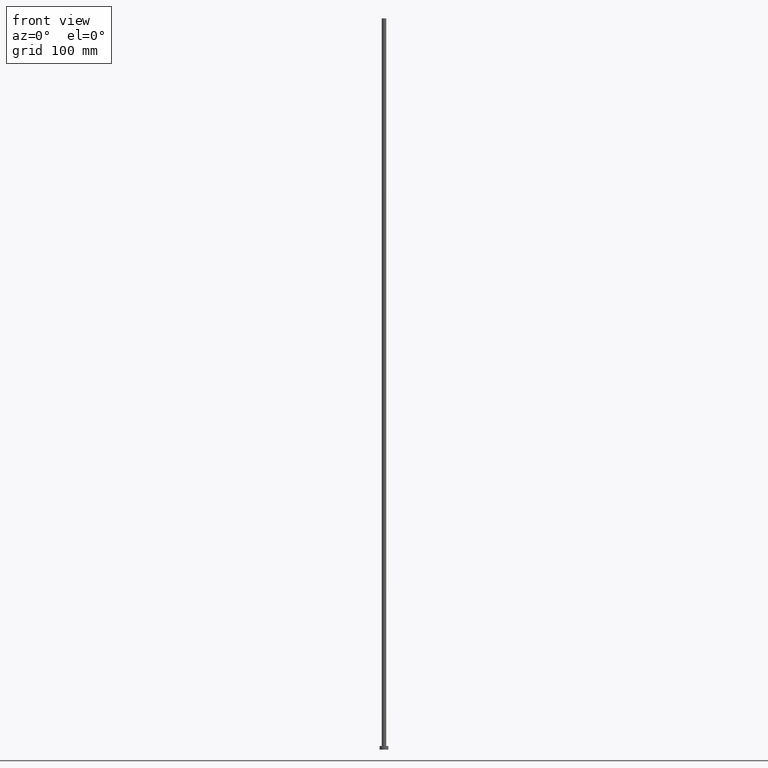
[diagram: clean part render]
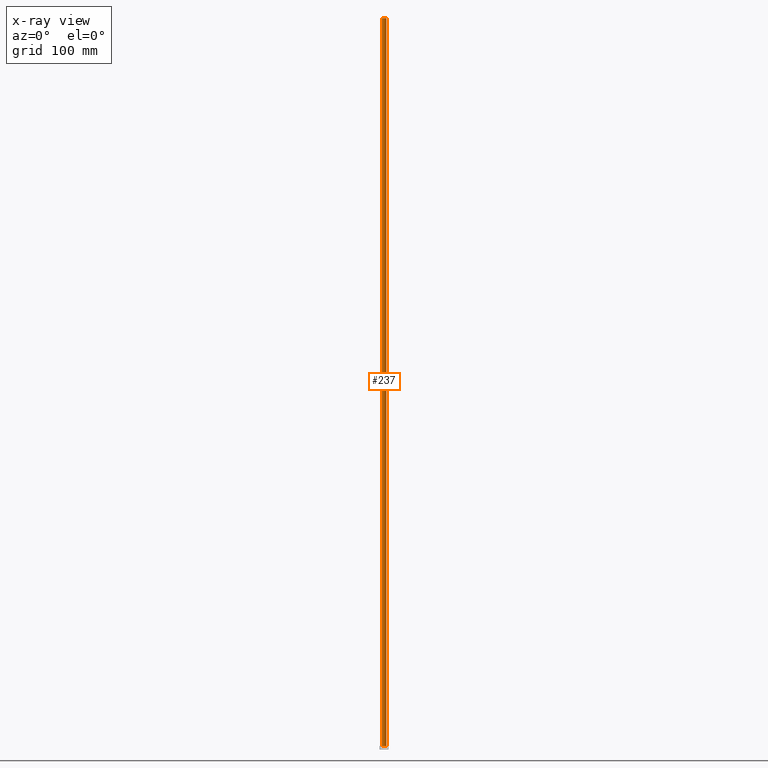
[diagram: x-ray — body ghosted, one internal face saturated and labeled with its STEP entity id]
A machine part, front view, then the same camera in x-ray: the body is ghosted and one INTERNAL B-rep face — a face not visible from any outside direction — is saturated and labeled: STEP entity #237.
In plain terms, the highlighted cylindrical surface (edge-blend (fillet) strip) has radius 3.1 mm, axis along (-0, -0, -1).
Its self-contained STEP definition (entity closure, byte-faithful):
#6 = CARTESIAN_POINT ( 'NONE',  ( 3.100000000000000089, 3.796405077356793932E-16, 1000.000000000000000 ) ) ;
#9 = CYLINDRICAL_SURFACE ( 'NONE', #106, 3.100000000000000089 ) ;
#10 = VERTEX_POINT ( 'NONE', #115 ) ;
#23 = DIRECTION ( 'NONE',  ( 0.000000000000000000, 0.000000000000000000, 1.000000000000000000 ) ) ;
#27 = CARTESIAN_POINT ( 'NONE',  ( -3.100000000000000089, 0.000000000000000000, 1000.000000000000000 ) ) ;
#30 = ORIENTED_EDGE ( 'NONE', *, *, #68, .T. ) ;
#51 = VECTOR ( 'NONE', #181, 1000.000000000000000 ) ;
#54 = CARTESIAN_POINT ( 'NONE',  ( 0.000000000000000000, 0.000000000000000000, 1000.000000000000000 ) ) ;
#60 = ORIENTED_EDGE ( 'NONE', *, *, #87, .F. ) ;
#68 = EDGE_CURVE ( 'NONE', #167, #10, #233, .T. ) ;
#70 = CIRCLE ( 'NONE', #147, 3.100000000000000089 ) ;
#76 = VECTOR ( 'NONE', #239, 1000.000000000000000 ) ;
#84 = VERTEX_POINT ( 'NONE', #27 ) ;
#86 = EDGE_LOOP ( 'NONE', ( #127, #30, #203, #60 ) ) ;
#87 = EDGE_CURVE ( 'NONE', #84, #208, #154, .T. ) ;
#89 = DIRECTION ( 'NONE',  ( -0.000000000000000000, -0.000000000000000000, -1.000000000000000000 ) ) ;
#91 = DIRECTION ( 'NONE',  ( 1.000000000000000000, 0.000000000000000000, 0.000000000000000000 ) ) ;
#104 = DIRECTION ( 'NONE',  ( 1.000000000000000000, 0.000000000000000000, 0.000000000000000000 ) ) ;
#106 = AXIS2_PLACEMENT_3D ( 'NONE', #225, #89, #130 ) ;
#115 = CARTESIAN_POINT ( 'NONE',  ( 3.100000000000000089, 3.796405077356793932E-16, 5.000000000000000000 ) ) ;
#118 = EDGE_CURVE ( 'NONE', #10, #208, #70, .T. ) ;
#121 = CARTESIAN_POINT ( 'NONE',  ( 0.000000000000000000, 0.000000000000000000, 5.000000000000000000 ) ) ;
#127 = ORIENTED_EDGE ( 'NONE', *, *, #177, .F. ) ;
#130 = DIRECTION ( 'NONE',  ( -1.000000000000000000, 0.000000000000000000, 0.000000000000000000 ) ) ;
#147 = AXIS2_PLACEMENT_3D ( 'NONE', #121, #23, #104 ) ;
#154 = LINE ( 'NONE', #219, #76 ) ;
#167 = VERTEX_POINT ( 'NONE', #6 ) ;
#170 = CIRCLE ( 'NONE', #198, 3.100000000000000089 ) ;
#177 = EDGE_CURVE ( 'NONE', #167, #84, #170, .T. ) ;
#181 = DIRECTION ( 'NONE',  ( -0.000000000000000000, -0.000000000000000000, -1.000000000000000000 ) ) ;
#186 = FACE_OUTER_BOUND ( 'NONE', #86, .T. ) ;
#198 = AXIS2_PLACEMENT_3D ( 'NONE', #54, #205, #91 ) ;
#203 = ORIENTED_EDGE ( 'NONE', *, *, #118, .T. ) ;
#205 = DIRECTION ( 'NONE',  ( 0.000000000000000000, 0.000000000000000000, 1.000000000000000000 ) ) ;
#208 = VERTEX_POINT ( 'NONE', #209 ) ;
#209 = CARTESIAN_POINT ( 'NONE',  ( -3.100000000000000089, 0.000000000000000000, 5.000000000000000000 ) ) ;
#218 = CARTESIAN_POINT ( 'NONE',  ( 3.100000000000000089, 3.796405077356793932E-16, 1000.000000000000000 ) ) ;
#219 = CARTESIAN_POINT ( 'NONE',  ( -3.100000000000000089, 0.000000000000000000, 1000.000000000000000 ) ) ;
#225 = CARTESIAN_POINT ( 'NONE',  ( 0.000000000000000000, 0.000000000000000000, 1000.000000000000000 ) ) ;
#233 = LINE ( 'NONE', #218, #51 ) ;
#237 = ADVANCED_FACE ( 'NONE', ( #186 ), #9, .T. ) ;
#239 = DIRECTION ( 'NONE',  ( -0.000000000000000000, -0.000000000000000000, -1.000000000000000000 ) ) ;